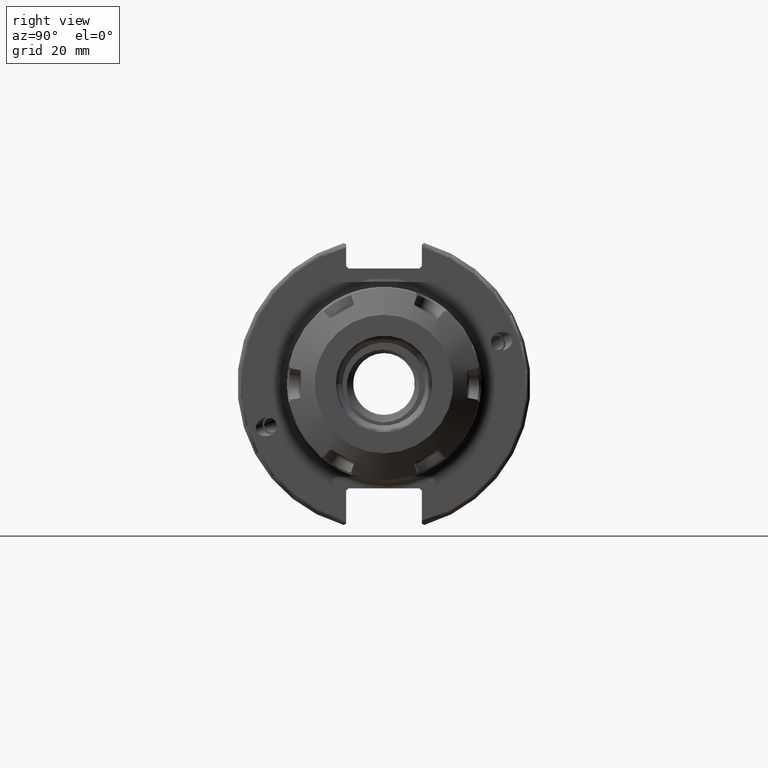
[diagram: clean part render]
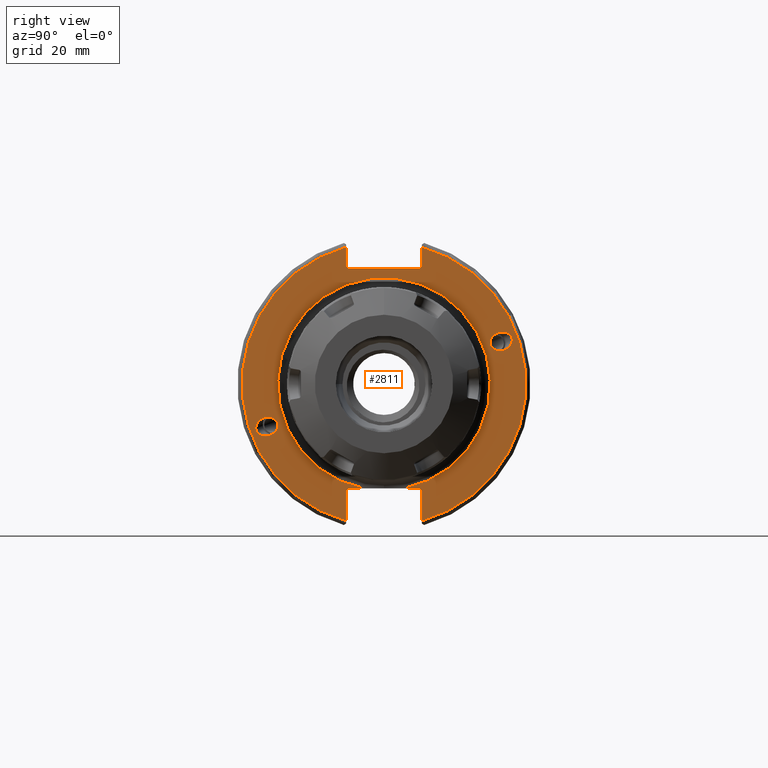
[diagram: same view with one face highlighted and labeled with its STEP entity id]
A machine part, right view. The second image highlights one B-rep face of the part: STEP entity #2811.
In plain terms, the highlighted planar face has unit normal (1, 0, 0).
Its self-contained STEP definition (entity closure, byte-faithful):
#139=ELLIPSE('',#3062,2.44154917752291,2.);
#149=ELLIPSE('',#3088,2.44154917752291,2.);
#309=FACE_BOUND('',#605,.T.);
#310=FACE_BOUND('',#606,.T.);
#330=PLANE('',#3113);
#428=FACE_OUTER_BOUND('',#604,.T.);
#604=EDGE_LOOP('',(#2121,#2122,#2123,#2124,#2125,#2126,#2127,#2128,#2129,
#2130,#2131,#2132,#2133,#2134));
#605=EDGE_LOOP('',(#2135));
#606=EDGE_LOOP('',(#2136));
#775=LINE('',#4508,#954);
#781=LINE('',#4534,#960);
#782=LINE('',#4535,#961);
#783=LINE('',#4537,#962);
#784=LINE('',#4539,#963);
#785=LINE('',#4541,#964);
#786=LINE('',#4543,#965);
#787=LINE('',#4545,#966);
#788=LINE('',#4549,#967);
#789=LINE('',#4551,#968);
#790=LINE('',#4552,#969);
#954=VECTOR('',#3560,10.);
#960=VECTOR('',#3568,10.);
#961=VECTOR('',#3569,10.);
#962=VECTOR('',#3570,10.);
#963=VECTOR('',#3571,10.);
#964=VECTOR('',#3572,10.);
#965=VECTOR('',#3573,10.);
#966=VECTOR('',#3574,10.);
#967=VECTOR('',#3577,10.);
#968=VECTOR('',#3578,10.);
#969=VECTOR('',#3579,10.);
#1119=CIRCLE('',#3044,23.);
#1139=CIRCLE('',#3109,30.75);
#1141=CIRCLE('',#3114,30.75);
#1248=VERTEX_POINT('',#4310);
#1249=VERTEX_POINT('',#4317);
#1259=VERTEX_POINT('',#4354);
#1274=VERTEX_POINT('',#4403);
#1297=VERTEX_POINT('',#4463);
#1298=VERTEX_POINT('',#4470);
#1304=VERTEX_POINT('',#4507);
#1311=VERTEX_POINT('',#4533);
#1312=VERTEX_POINT('',#4536);
#1313=VERTEX_POINT('',#4538);
#1314=VERTEX_POINT('',#4540);
#1315=VERTEX_POINT('',#4542);
#1316=VERTEX_POINT('',#4544);
#1317=VERTEX_POINT('',#4546);
#1318=VERTEX_POINT('',#4548);
#1319=VERTEX_POINT('',#4550);
#1528=EDGE_CURVE('',#1248,#1249,#1119,.T.);
#1544=EDGE_CURVE('',#1259,#1259,#139,.T.);
#1568=EDGE_CURVE('',#1274,#1274,#149,.T.);
#1597=EDGE_CURVE('',#1297,#1298,#1139,.T.);
#1605=EDGE_CURVE('',#1304,#1298,#775,.T.);
#1614=EDGE_CURVE('',#1248,#1311,#781,.T.);
#1615=EDGE_CURVE('',#1304,#1311,#782,.T.);
#1616=EDGE_CURVE('',#1297,#1312,#783,.T.);
#1617=EDGE_CURVE('',#1313,#1312,#784,.T.);
#1618=EDGE_CURVE('',#1313,#1314,#785,.T.);
#1619=EDGE_CURVE('',#1315,#1314,#786,.T.);
#1620=EDGE_CURVE('',#1315,#1316,#787,.T.);
#1621=EDGE_CURVE('',#1317,#1316,#1141,.T.);
#1622=EDGE_CURVE('',#1317,#1318,#788,.T.);
#1623=EDGE_CURVE('',#1319,#1318,#789,.T.);
#1624=EDGE_CURVE('',#1319,#1249,#790,.T.);
#2121=ORIENTED_EDGE('',*,*,#1528,.F.);
#2122=ORIENTED_EDGE('',*,*,#1614,.T.);
#2123=ORIENTED_EDGE('',*,*,#1615,.F.);
#2124=ORIENTED_EDGE('',*,*,#1605,.T.);
#2125=ORIENTED_EDGE('',*,*,#1597,.F.);
#2126=ORIENTED_EDGE('',*,*,#1616,.T.);
#2127=ORIENTED_EDGE('',*,*,#1617,.F.);
#2128=ORIENTED_EDGE('',*,*,#1618,.T.);
#2129=ORIENTED_EDGE('',*,*,#1619,.F.);
#2130=ORIENTED_EDGE('',*,*,#1620,.T.);
#2131=ORIENTED_EDGE('',*,*,#1621,.F.);
#2132=ORIENTED_EDGE('',*,*,#1622,.T.);
#2133=ORIENTED_EDGE('',*,*,#1623,.F.);
#2134=ORIENTED_EDGE('',*,*,#1624,.T.);
#2135=ORIENTED_EDGE('',*,*,#1544,.T.);
#2136=ORIENTED_EDGE('',*,*,#1568,.T.);
#2811=ADVANCED_FACE('',(#428,#309,#310),#330,.T.);
#3044=AXIS2_PLACEMENT_3D('',#4318,#3393,#3394);
#3062=AXIS2_PLACEMENT_3D('',#4355,#3432,#3433);
#3088=AXIS2_PLACEMENT_3D('',#4404,#3492,#3493);
#3109=AXIS2_PLACEMENT_3D('',#4471,#3550,#3551);
#3113=AXIS2_PLACEMENT_3D('',#4532,#3566,#3567);
#3114=AXIS2_PLACEMENT_3D('',#4547,#3575,#3576);
#3393=DIRECTION('center_axis',(1.,0.,0.));
#3394=DIRECTION('ref_axis',(0.,-1.,-1.22464679914735E-16));
#3432=DIRECTION('center_axis',(-1.,0.,0.));
#3433=DIRECTION('ref_axis',(5.68400912649003E-17,-0.939692620785908,-0.34202014332567));
#3492=DIRECTION('center_axis',(-1.,0.,0.));
#3493=DIRECTION('ref_axis',(5.68400912649003E-17,0.939692620785908,0.34202014332567));
#3550=DIRECTION('center_axis',(-1.,0.,0.));
#3551=DIRECTION('ref_axis',(0.,1.,-6.12323399573677E-17));
#3560=DIRECTION('',(0.,0.,-1.));
#3566=DIRECTION('center_axis',(1.,0.,0.));
#3567=DIRECTION('ref_axis',(0.,0.,-1.));
#3568=DIRECTION('',(0.,1.,0.));
#3569=DIRECTION('',(0.,-0.707106781186549,0.707106781186546));
#3570=DIRECTION('',(0.,0.,-1.));
#3571=DIRECTION('',(0.,0.707106781186549,0.707106781186546));
#3572=DIRECTION('',(0.,-1.,0.));
#3573=DIRECTION('',(0.,0.70710678118655,-0.707106781186545));
#3574=DIRECTION('',(0.,0.,1.));
#3575=DIRECTION('center_axis',(-1.,0.,0.));
#3576=DIRECTION('ref_axis',(0.,-1.,1.60812264967664E-16));
#3577=DIRECTION('',(0.,0.,1.));
#3578=DIRECTION('',(0.,-0.707106781186549,-0.707106781186546));
#3579=DIRECTION('',(0.,1.,0.));
#4310=CARTESIAN_POINT('',(19.05,4.27083130081252,-22.6));
#4317=CARTESIAN_POINT('',(19.05,-4.27083130081252,-22.6));
#4318=CARTESIAN_POINT('Origin',(19.05,0.,0.));
#4354=CARTESIAN_POINT('',(19.05,-23.0773950158154,-8.39948487016));
#4355=CARTESIAN_POINT('Origin',(19.05,-25.3717007612195,-9.23454386979305));
#4403=CARTESIAN_POINT('',(19.05,23.0773950158154,8.39948487016));
#4404=CARTESIAN_POINT('Origin',(19.05,25.3717007612195,9.23454386979306));
#4463=CARTESIAN_POINT('',(19.05,8.19,29.6392712461019));
#4470=CARTESIAN_POINT('',(19.05,8.19,-29.6392712461019));
#4471=CARTESIAN_POINT('Origin',(19.05,0.,0.));
#4507=CARTESIAN_POINT('',(19.05,8.19,-23.1));
#4508=CARTESIAN_POINT('',(19.05,8.19,-11.3));
#4532=CARTESIAN_POINT('Origin',(19.05,0.,0.));
#4533=CARTESIAN_POINT('',(19.05,7.69,-22.6));
#4534=CARTESIAN_POINT('',(19.05,-2.77555756156289E-16,-22.6));
#4535=CARTESIAN_POINT('',(19.05,0.242499999999989,-15.1525));
#4536=CARTESIAN_POINT('',(19.05,8.19,25.5));
#4537=CARTESIAN_POINT('',(19.05,8.19,12.5));
#4538=CARTESIAN_POINT('',(19.05,7.69,25.));
#4539=CARTESIAN_POINT('',(19.05,-0.35750000000001,16.9525));
#4540=CARTESIAN_POINT('',(19.05,-7.69,25.));
#4541=CARTESIAN_POINT('',(19.05,0.,25.));
#4542=CARTESIAN_POINT('',(19.05,-8.19,25.5));
#4543=CARTESIAN_POINT('',(19.05,0.357500000000014,16.9525));
#4544=CARTESIAN_POINT('',(19.05,-8.19,29.6392712461019));
#4545=CARTESIAN_POINT('',(19.05,-8.19,12.5));
#4546=CARTESIAN_POINT('',(19.05,-8.19,-29.6392712461019));
#4547=CARTESIAN_POINT('Origin',(19.05,0.,0.));
#4548=CARTESIAN_POINT('',(19.05,-8.19,-23.1));
#4549=CARTESIAN_POINT('',(19.05,-8.19,-11.3));
#4550=CARTESIAN_POINT('',(19.05,-7.69,-22.6));
#4551=CARTESIAN_POINT('',(19.05,-0.242499999999991,-15.1525));
#4552=CARTESIAN_POINT('',(19.05,-2.77555756156289E-16,-22.6));